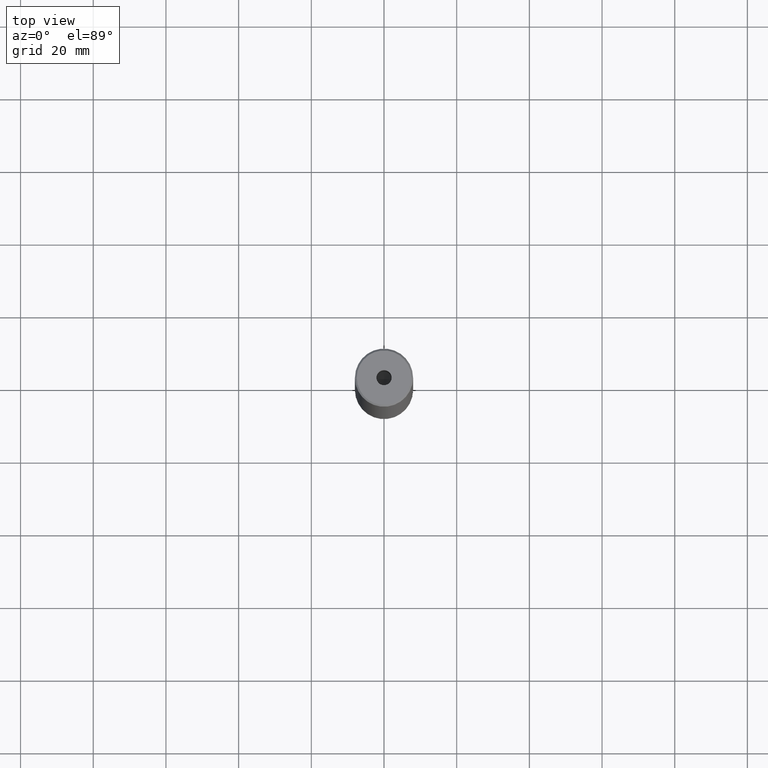
[diagram: clean part render]
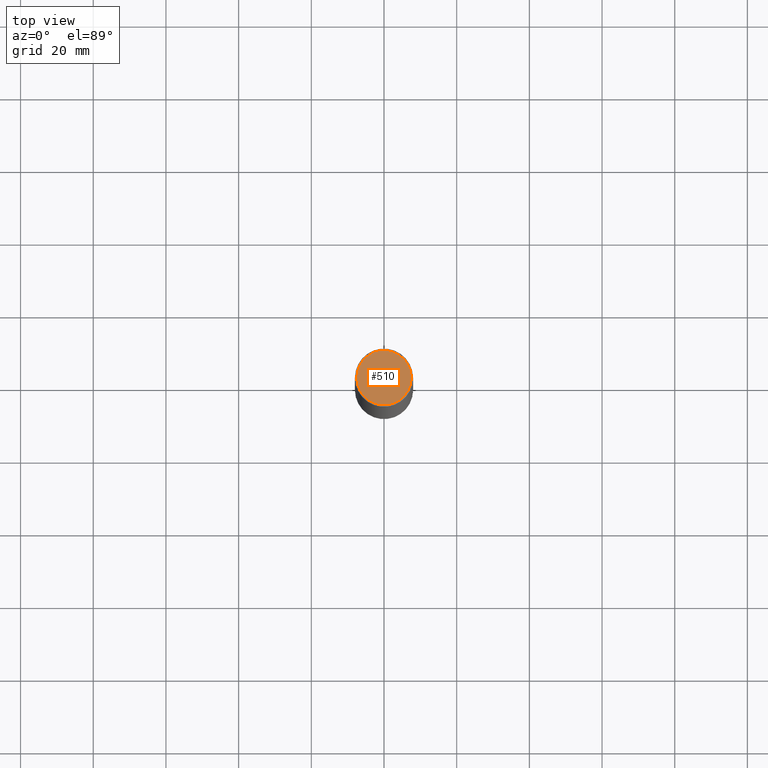
[diagram: same view with one face highlighted and labeled with its STEP entity id]
A machine part, top view. The second image highlights one B-rep face of the part: STEP entity #510.
In plain terms, the highlighted planar face has unit normal (0, -0, 1).
Its self-contained STEP definition (entity closure, byte-faithful):
#16 = VERTEX_POINT ( 'NONE', #92 ) ;
#28 = DIRECTION ( 'NONE',  ( 1.000000000000000000, 0.000000000000000000, 0.000000000000000000 ) ) ;
#56 = DIRECTION ( 'NONE',  ( -0.000000000000000000, -0.000000000000000000, 1.000000000000000000 ) ) ;
#69 = EDGE_CURVE ( 'NONE', #128, #16, #337, .T. ) ;
#77 = AXIS2_PLACEMENT_3D ( 'NONE', #578, #295, #28 ) ;
#82 = ORIENTED_EDGE ( 'NONE', *, *, #132, .F. ) ;
#92 = CARTESIAN_POINT ( 'NONE',  ( 2.099999999999998757, 0.000000000000000000, -1.990051048614449116E-16 ) ) ;
#99 = AXIS2_PLACEMENT_3D ( 'NONE', #513, #377, #566 ) ;
#115 = CARTESIAN_POINT ( 'NONE',  ( 0.000000000000000000, 0.000000000000000000, -1.990051048614449116E-16 ) ) ;
#127 = EDGE_CURVE ( 'NONE', #331, #537, #343, .T. ) ;
#128 = VERTEX_POINT ( 'NONE', #519 ) ;
#132 = EDGE_CURVE ( 'NONE', #16, #128, #225, .T. ) ;
#158 = EDGE_CURVE ( 'NONE', #537, #331, #168, .T. ) ;
#168 = CIRCLE ( 'NONE', #299, 7.500000000000034639 ) ;
#184 = ORIENTED_EDGE ( 'NONE', *, *, #127, .T. ) ;
#188 = CARTESIAN_POINT ( 'NONE',  ( 0.000000000000000000, 0.000000000000000000, 0.000000000000000000 ) ) ;
#225 = CIRCLE ( 'NONE', #430, 2.099999999999998757 ) ;
#265 = CARTESIAN_POINT ( 'NONE',  ( 0.000000000000000000, 0.000000000000000000, 0.000000000000000000 ) ) ;
#277 = DIRECTION ( 'NONE',  ( 1.000000000000000000, 0.000000000000000000, 0.000000000000000000 ) ) ;
#295 = DIRECTION ( 'NONE',  ( -0.000000000000000000, -0.000000000000000000, 1.000000000000000000 ) ) ;
#299 = AXIS2_PLACEMENT_3D ( 'NONE', #188, #515, #277 ) ;
#319 = FACE_BOUND ( 'NONE', #524, .T. ) ;
#331 = VERTEX_POINT ( 'NONE', #573 ) ;
#337 = CIRCLE ( 'NONE', #77, 2.099999999999998757 ) ;
#343 = CIRCLE ( 'NONE', #99, 7.500000000000034639 ) ;
#377 = DIRECTION ( 'NONE',  ( -0.000000000000000000, -0.000000000000000000, 1.000000000000000000 ) ) ;
#379 = CARTESIAN_POINT ( 'NONE',  ( 7.500000000000034639, 9.491012693392009481E-16, 0.000000000000000000 ) ) ;
#400 = ORIENTED_EDGE ( 'NONE', *, *, #158, .T. ) ;
#405 = AXIS2_PLACEMENT_3D ( 'NONE', #265, #554, #543 ) ;
#419 = ORIENTED_EDGE ( 'NONE', *, *, #69, .F. ) ;
#430 = AXIS2_PLACEMENT_3D ( 'NONE', #115, #56, #563 ) ;
#454 = FACE_OUTER_BOUND ( 'NONE', #540, .T. ) ;
#510 = ADVANCED_FACE ( 'NONE', ( #319, #454 ), #536, .T. ) ;
#513 = CARTESIAN_POINT ( 'NONE',  ( 0.000000000000000000, 0.000000000000000000, 0.000000000000000000 ) ) ;
#515 = DIRECTION ( 'NONE',  ( -0.000000000000000000, -0.000000000000000000, 1.000000000000000000 ) ) ;
#519 = CARTESIAN_POINT ( 'NONE',  ( -2.099999999999998757, 2.571758278209440478E-16, -1.990051048614449116E-16 ) ) ;
#524 = EDGE_LOOP ( 'NONE', ( #82, #419 ) ) ;
#536 = PLANE ( 'NONE',  #405 ) ;
#537 = VERTEX_POINT ( 'NONE', #379 ) ;
#540 = EDGE_LOOP ( 'NONE', ( #184, #400 ) ) ;
#543 = DIRECTION ( 'NONE',  ( 1.000000000000000000, 0.000000000000000000, 0.000000000000000000 ) ) ;
#554 = DIRECTION ( 'NONE',  ( 0.000000000000000000, -0.000000000000000000, 1.000000000000000000 ) ) ;
#563 = DIRECTION ( 'NONE',  ( 1.000000000000000000, 0.000000000000000000, 0.000000000000000000 ) ) ;
#566 = DIRECTION ( 'NONE',  ( 1.000000000000000000, 0.000000000000000000, 0.000000000000000000 ) ) ;
#573 = CARTESIAN_POINT ( 'NONE',  ( -7.500000000000034639, 0.000000000000000000, 0.000000000000000000 ) ) ;
#578 = CARTESIAN_POINT ( 'NONE',  ( 0.000000000000000000, 0.000000000000000000, -1.990051048614449116E-16 ) ) ;